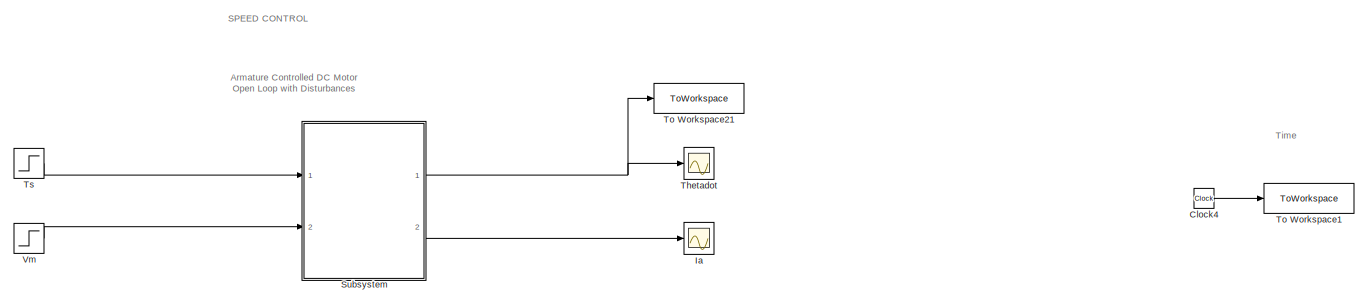
[diagram: root canvas - part 1/6, top left region]
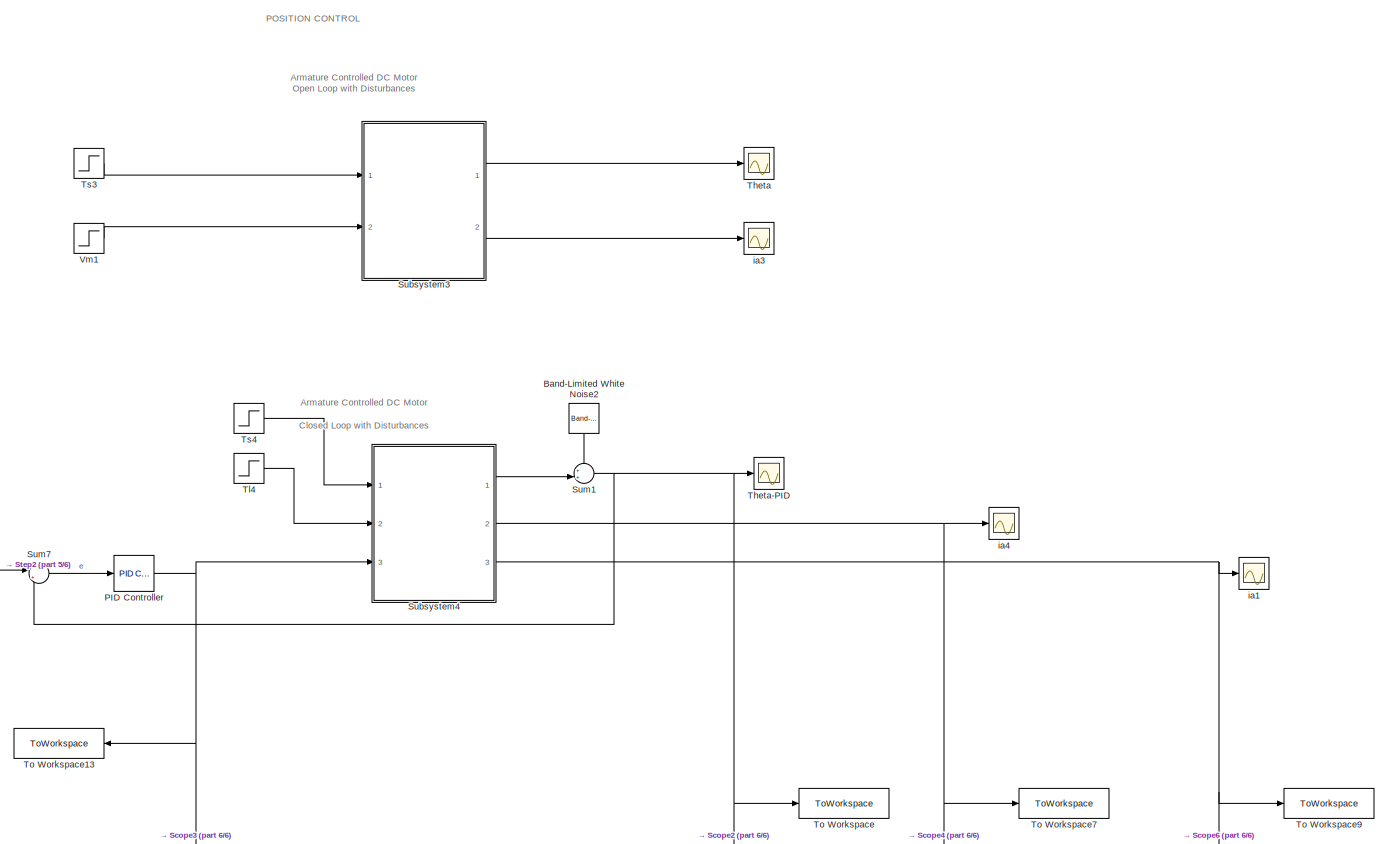
[diagram: root canvas - part 2/6, top right region]
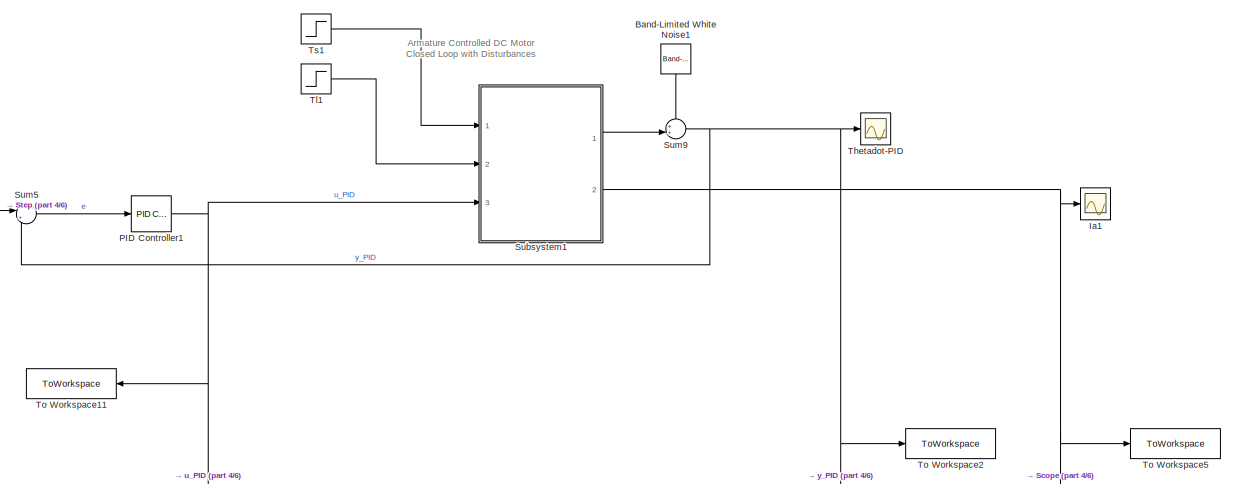
[diagram: root canvas - part 3/6, middle left region]
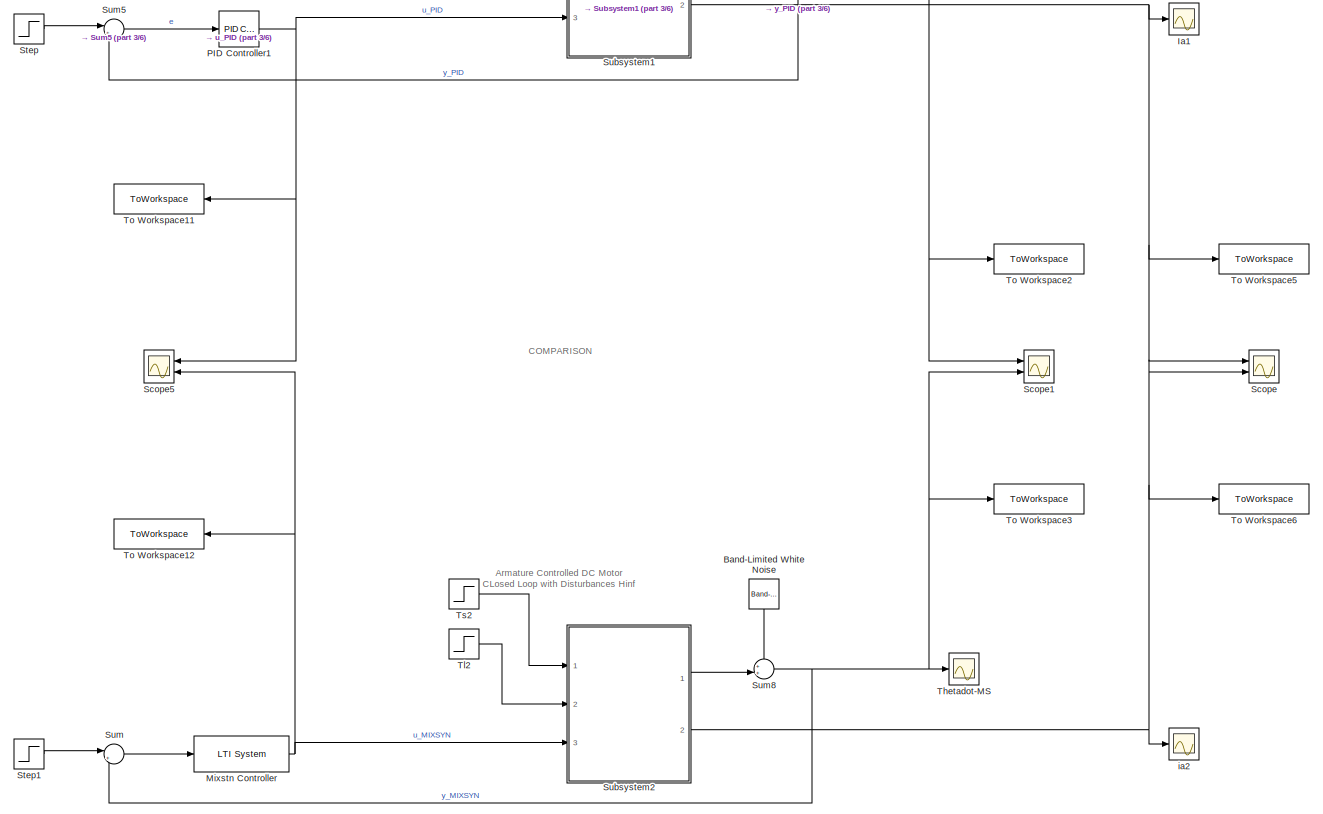
[diagram: root canvas - part 4/6, bottom left region]
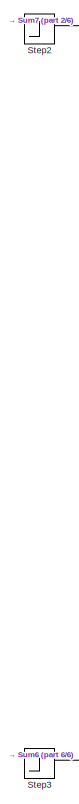
[diagram: root canvas - part 5/6, bottom center region]
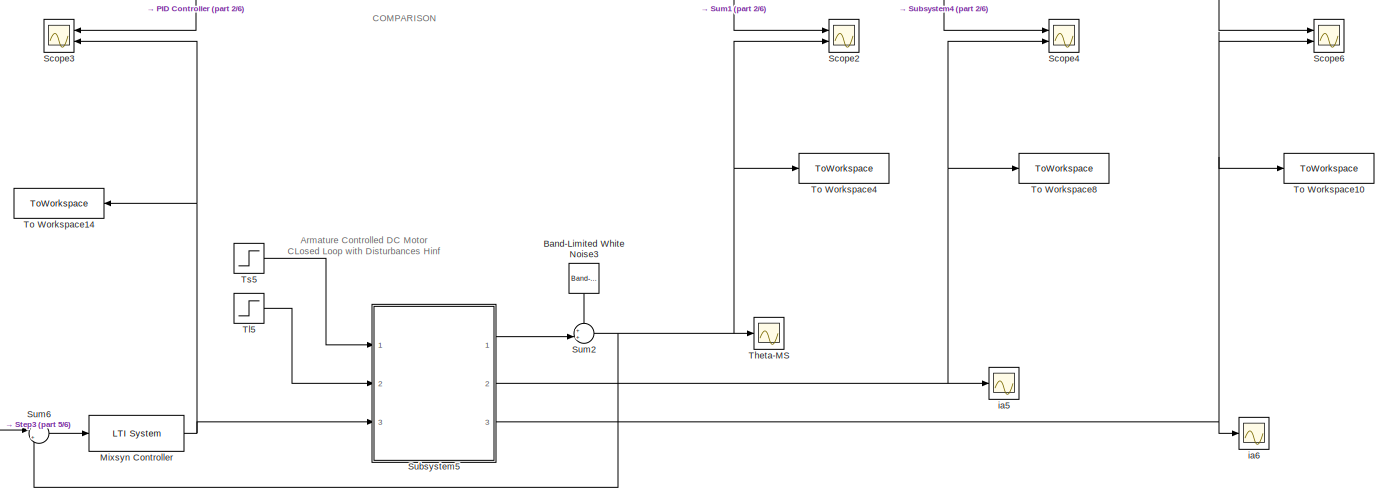
[diagram: root canvas - part 6/6, bottom right region]
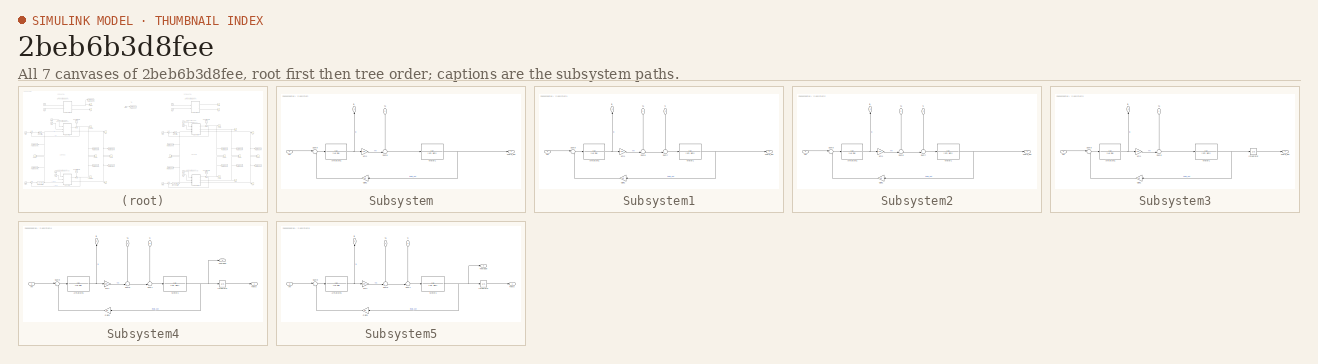
[diagram: thumbnail index - all 7 canvases of the model, root first then tree order]
MODEL slx_2beb6b3d8fee
KIND model
CONFIG AbsTol = auto
CONFIG EnableMultiTasking = off
CONFIG FixedStep = auto
CONFIG MaxStep = auto
CONFIG MinStep = auto
CONFIG RelTol = 1e-3
CONFIG SampleTimeConstraint = Unconstrained
CONFIG SolverName = VariableStepAuto
CONFIG StartTime = 0.0
CONFIG StopTime = 1
BLOCK [Reference] Band-Limited White Noise  REF=simulink/Sources/Band-Limited
White Noise
  NameLocation = left
  Ports = [0, 1]
  SourceBlock = simulink/Sources/Band-Limited\nWhite Noise
  SourceProductBaseCode = SL
  SourceType = Band-Limited White Noise.
BLOCK [Reference] Band-Limited White Noise1  REF=simulink/Sources/Band-Limited
White Noise
  NameLocation = left
  Ports = [0, 1]
  SourceBlock = simulink/Sources/Band-Limited\nWhite Noise
  SourceProductBaseCode = SL
  SourceType = Band-Limited White Noise.
BLOCK [Reference] Band-Limited White Noise2  REF=simulink/Sources/Band-Limited
White Noise
  NameLocation = left
  Ports = [0, 1]
  SourceBlock = simulink/Sources/Band-Limited\nWhite Noise
  SourceProductBaseCode = SL
  SourceType = Band-Limited White Noise.
BLOCK [Reference] Band-Limited White Noise3  REF=simulink/Sources/Band-Limited
White Noise
  NameLocation = left
  Ports = [0, 1]
  SourceBlock = simulink/Sources/Band-Limited\nWhite Noise
  SourceProductBaseCode = SL
  SourceType = Band-Limited White Noise.
BLOCK [Clock] Clock4
BLOCK [Scope] Ia
  Floating = off
  NumInputPorts = 1
  Ports = [1]
  ScopeSpecificationString = Simulink.scopes.TimeScopeBlockCfg('CurrentConfiguration', extmgr.ConfigurationSet(extmgr.Configuration('Core','General UI',true),extmgr.Configuration('Core','Source UI',true),extmgr.Configuration('Sources','WiredSimulink',true,'DataLoggingVariableName','ScopeData3'),extmgr.Configuration('Visuals','Time Domain',true,'SerializedDisplays',{struct('MinYLimReal','-0.0852','MaxYLimReal','0.76677','YLabe...<+1369ch>
BLOCK [Scope] Ia1
  Floating = off
  NumInputPorts = 1
  Ports = [1]
  ScopeSpecificationString = Simulink.scopes.TimeScopeBlockCfg('CurrentConfiguration', extmgr.ConfigurationSet(extmgr.Configuration('Core','General UI',true),extmgr.Configuration('Core','Source UI',true),extmgr.Configuration('Sources','WiredSimulink',true,'DataLoggingVariableName','ScopeData5'),extmgr.Configuration('Visuals','Time Domain',true,'SerializedDisplays',{struct('MinYLimReal','-0.08845','MaxYLimReal','0.79606','YLab...<+1372ch>
BLOCK [Reference] Mixstn Controller  REF=cstblocks/LTI System
  Ports = [1, 1]
  SourceBlock = cstblocks/LTI System
  SourceProductBaseCode = CT
  SourceType = LTI Block
BLOCK [Reference] Mixsyn Controller  REF=cstblocks/LTI System
  Ports = [1, 1]
  SourceBlock = cstblocks/LTI System
  SourceProductBaseCode = CT
  SourceType = LTI Block
BLOCK [Reference] PID Controller  REF=pid_lib/PID Controller
  Ports = [1, 1]
  SourceBlock = pid_lib/PID Controller
  SourceProductBaseCode = SL
  SourceType = PID 1dof
BLOCK [Reference] PID Controller1  REF=pid_lib/PID Controller
  Ports = [1, 1]
  SourceBlock = pid_lib/PID Controller
  SourceProductBaseCode = SL
  SourceType = PID 1dof
BLOCK [Scope] Scope
  Floating = off
  NumInputPorts = 2
  Ports = [2]
  ScopeSpecificationString = Simulink.scopes.TimeScopeBlockCfg('CurrentConfiguration', extmgr.ConfigurationSet(extmgr.Configuration('Core','General UI',true),extmgr.Configuration('Core','Source UI',true),extmgr.Configuration('Sources','WiredSimulink',true,'DataLoggingVariableName','ScopeData1'),extmgr.Configuration('Visuals','Time Domain',true,'SerializedDisplays',{struct('MinYLimReal','0.36527','MaxYLimReal','0.37391','YLabe...<+1465ch>
BLOCK [Scope] Scope1
  Floating = off
  NumInputPorts = 2
  Ports = [2]
  ScopeSpecificationString = Simulink.scopes.TimeScopeBlockCfg('CurrentConfiguration', extmgr.ConfigurationSet(extmgr.Configuration('Core','General UI',true,'FigureColor',[1 1 1]),extmgr.Configuration('Core','Source UI',true),extmgr.Configuration('Sources','WiredSimulink',true,'DataLoggingVariableName','ScopeData3'),extmgr.Configuration('Visuals','Time Domain',true,'SerializedDisplays',{struct('MinYLimReal','-3373.1511','MaxY...<+1807ch>
BLOCK [Scope] Scope2
  Floating = off
  NumInputPorts = 2
  Ports = [2]
  ScopeSpecificationString = Simulink.scopes.TimeScopeBlockCfg('CurrentConfiguration', extmgr.ConfigurationSet(extmgr.Configuration('Core','General UI',true,'FigureColor',[1 1 1]),extmgr.Configuration('Core','Source UI',true),extmgr.Configuration('Sources','WiredSimulink',true,'DataLoggingVariableName','ScopeData4'),extmgr.Configuration('Visuals','Time Domain',true,'SerializedDisplays',{struct('MinYLimReal','-40.50804','MaxYL...<+1769ch>
BLOCK [Scope] Scope3
  Floating = off
  NameLocation = top
  NumInputPorts = 2
  Ports = [2]
  ScopeSpecificationString = Simulink.scopes.TimeScopeBlockCfg('CurrentConfiguration', extmgr.ConfigurationSet(extmgr.Configuration('Core','General UI',true,'FigureColor',[1 1 1]),extmgr.Configuration('Core','Source UI',true),extmgr.Configuration('Sources','WiredSimulink',true,'DataLoggingVariableName','ScopeData11'),extmgr.Configuration('Visuals','Time Domain',true,'SerializedDisplays',{struct('MinYLimReal','-19.03007','MaxY...<+1790ch>
BLOCK [Scope] Scope4
  Floating = off
  NumInputPorts = 2
  Ports = [2]
  ScopeSpecificationString = Simulink.scopes.TimeScopeBlockCfg('CurrentConfiguration', extmgr.ConfigurationSet(extmgr.Configuration('Core','General UI',true),extmgr.Configuration('Core','Source UI',true),extmgr.Configuration('Sources','WiredSimulink',true,'DataLoggingVariableName','ScopeData2'),extmgr.Configuration('Visuals','Time Domain',true,'SerializedDisplays',{struct('MinYLimReal','-2.2725','MaxYLimReal','5.62949','YLabe...<+1463ch>
BLOCK [Scope] Scope5
  Floating = off
  NameLocation = top
  NumInputPorts = 2
  Ports = [2]
  ScopeSpecificationString = Simulink.scopes.TimeScopeBlockCfg('CurrentConfiguration', extmgr.ConfigurationSet(extmgr.Configuration('Core','General UI',true,'FigureColor',[1 1 1]),extmgr.Configuration('Core','Source UI',true),extmgr.Configuration('Sources','WiredSimulink',true,'DataLoggingVariableName','ScopeData13'),extmgr.Configuration('Visuals','Time Domain',true,'SerializedDisplays',{struct('MinYLimReal','-1.22752','MaxYL...<+1767ch>
BLOCK [Scope] Scope6
  Floating = off
  NumInputPorts = 2
  Ports = [2]
  ScopeSpecificationString = Simulink.scopes.TimeScopeBlockCfg('CurrentConfiguration', extmgr.ConfigurationSet(extmgr.Configuration('Core','General UI',true),extmgr.Configuration('Core','Source UI',true),extmgr.Configuration('Sources','WiredSimulink',true,'DataLoggingVariableName','ScopeData3'),extmgr.Configuration('Visuals','Time Domain',true,'SerializedDisplays',{struct('MinYLimReal','-10358.99108','MaxYLimReal','23886.1635...<+1476ch>
BLOCK [Step] Step
  After = 25000
  SampleTime = 0
  Time = 0
BLOCK [Step] Step1
  After = 25000
  SampleTime = 0
  Time = 0
BLOCK [Step] Step2
  After = 210
  SampleTime = 0
  Time = 0
BLOCK [Step] Step3
  After = 210
  SampleTime = 0
  Time = 0
BLOCK [SubSystem] Subsystem
  Ports = [2, 2]
  RequestExecContextInheritance = off
BLOCK [TransferFcn] Subsystem/Armature1
  Denominator = [La Ra]
BLOCK [Gain] Subsystem/Gain1
  Gain = ke
  NameLocation = top
BLOCK [TransferFcn] Subsystem/Motor1
  Denominator = [Jm Bm]
BLOCK [Sum] Subsystem/Sum6
  Inputs = -+|
  Ports = [2, 1]
BLOCK [Sum] Subsystem/Sum9
  Inputs = |+-
  Ports = [2, 1]
BLOCK [Outport] Subsystem/Theta_dot
BLOCK [Inport] Subsystem/Ts
  NameLocation = left
BLOCK [Inport] Subsystem/Vm
  Port = 2
BLOCK [Outport] Subsystem/ia
  NameLocation = right
  Port = 2
BLOCK [Gain] Subsystem/km1
  Gain = km
BLOCK [SubSystem] Subsystem1
  Ports = [3, 2]
  RequestExecContextInheritance = off
BLOCK [TransferFcn] Subsystem1/Armature1
  Denominator = [La Ra]
BLOCK [Gain] Subsystem1/Gain1
  Gain = ke
  NameLocation = top
BLOCK [TransferFcn] Subsystem1/Motor1
  Denominator = [Jm Bm]
BLOCK [Sum] Subsystem1/Sum6
  Inputs = -+|
  Ports = [2, 1]
BLOCK [Sum] Subsystem1/Sum7
  Inputs = -+|
  Ports = [2, 1]
BLOCK [Sum] Subsystem1/Sum9
  Inputs = |+-
  Ports = [2, 1]
BLOCK [Outport] Subsystem1/Theta_dot
BLOCK [Inport] Subsystem1/Tl
  NameLocation = left
  Port = 2
BLOCK [Inport] Subsystem1/Ts
  NameLocation = left
BLOCK [Inport] Subsystem1/Vm
  Port = 3
BLOCK [Outport] Subsystem1/ia
  NameLocation = right
  Port = 2
BLOCK [Gain] Subsystem1/km1
  Gain = km
BLOCK [SubSystem] Subsystem2
  Ports = [3, 2]
  RequestExecContextInheritance = off
BLOCK [TransferFcn] Subsystem2/Armature1
  Denominator = [La Ra]
BLOCK [Gain] Subsystem2/Gain1
  Gain = ke
  NameLocation = top
BLOCK [TransferFcn] Subsystem2/Motor1
  Denominator = [Jm Bm]
BLOCK [Sum] Subsystem2/Sum6
  Inputs = -+|
  Ports = [2, 1]
BLOCK [Sum] Subsystem2/Sum7
  Inputs = -+|
  Ports = [2, 1]
BLOCK [Sum] Subsystem2/Sum9
  Inputs = |+-
  Ports = [2, 1]
BLOCK [Outport] Subsystem2/Theta_dot
BLOCK [Inport] Subsystem2/Tl
  NameLocation = left
  Port = 2
BLOCK [Inport] Subsystem2/Ts
  NameLocation = left
BLOCK [Inport] Subsystem2/Vm
  Port = 3
BLOCK [Outport] Subsystem2/ia
  NameLocation = right
  Port = 2
BLOCK [Gain] Subsystem2/km1
  Gain = km
BLOCK [SubSystem] Subsystem3
  Ports = [2, 2]
  RequestExecContextInheritance = off
BLOCK [TransferFcn] Subsystem3/Armature1
  Denominator = [La Ra]
BLOCK [Gain] Subsystem3/Gain1
  Gain = ke
  NameLocation = top
BLOCK [Integrator] Subsystem3/Integrator
  Ports = [1, 1]
BLOCK [TransferFcn] Subsystem3/Motor1
  Denominator = [Jm Bm]
BLOCK [Sum] Subsystem3/Sum6
  Inputs = -+|
  Ports = [2, 1]
BLOCK [Sum] Subsystem3/Sum9
  Inputs = |+-
  Ports = [2, 1]
BLOCK [Outport] Subsystem3/Theta_dot
BLOCK [Inport] Subsystem3/Ts
  NameLocation = left
BLOCK [Inport] Subsystem3/Vm
  Port = 2
BLOCK [Outport] Subsystem3/ia
  NameLocation = right
  Port = 2
BLOCK [Gain] Subsystem3/km1
  Gain = km
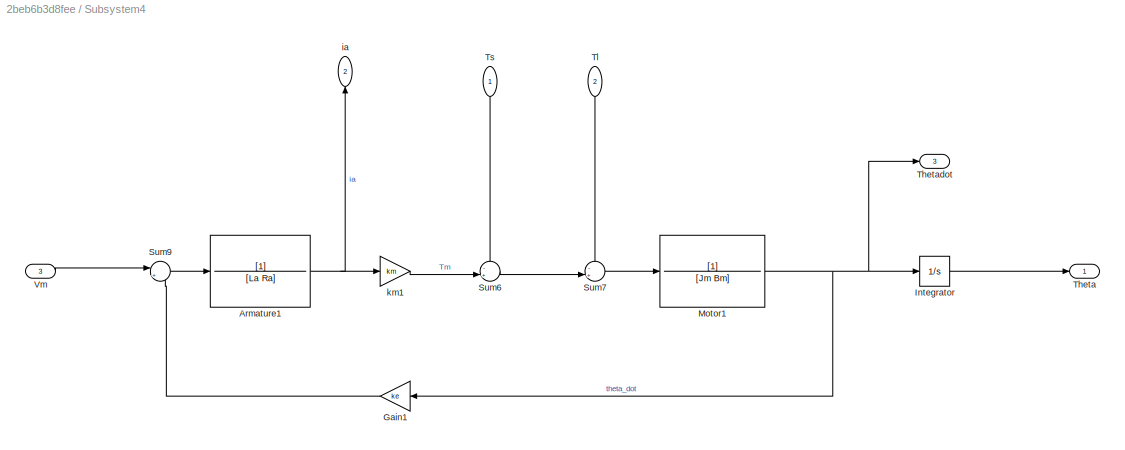
BLOCK [SubSystem] Subsystem4
  Ports = [3, 3]
  RequestExecContextInheritance = off
BLOCK [TransferFcn] Subsystem4/Armature1
  Denominator = [La Ra]
BLOCK [Gain] Subsystem4/Gain1
  Gain = ke
  NameLocation = top
BLOCK [Integrator] Subsystem4/Integrator
  Ports = [1, 1]
BLOCK [TransferFcn] Subsystem4/Motor1
  Denominator = [Jm Bm]
BLOCK [Sum] Subsystem4/Sum6
  Inputs = -+|
  Ports = [2, 1]
BLOCK [Sum] Subsystem4/Sum7
  Inputs = -+|
  Ports = [2, 1]
BLOCK [Sum] Subsystem4/Sum9
  Inputs = |+-
  Ports = [2, 1]
BLOCK [Outport] Subsystem4/Theta
BLOCK [Outport] Subsystem4/Thetadot
  Port = 3
BLOCK [Inport] Subsystem4/Tl
  NameLocation = left
  Port = 2
BLOCK [Inport] Subsystem4/Ts
  NameLocation = left
BLOCK [Inport] Subsystem4/Vm
  Port = 3
BLOCK [Outport] Subsystem4/ia
  NameLocation = right
  Port = 2
BLOCK [Gain] Subsystem4/km1
  Gain = km
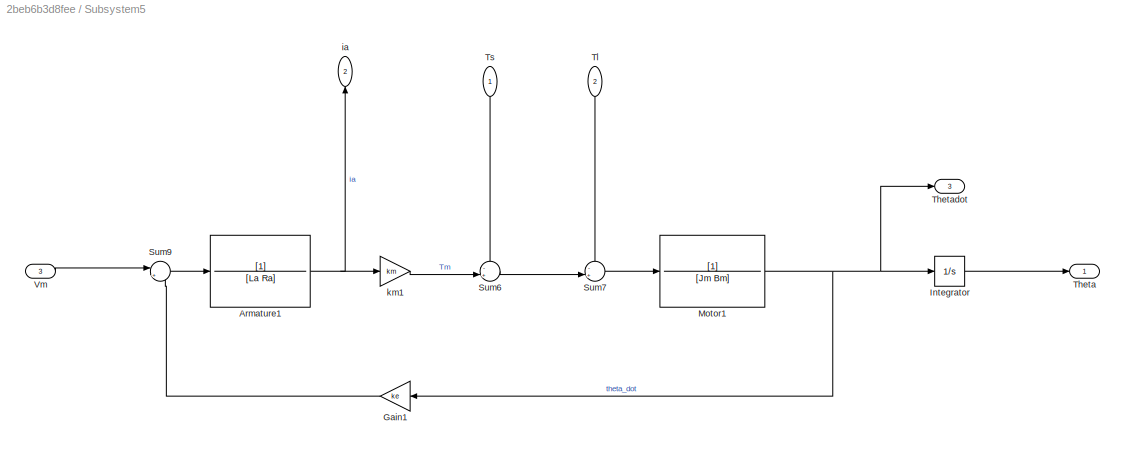
BLOCK [SubSystem] Subsystem5
  Ports = [3, 3]
  RequestExecContextInheritance = off
BLOCK [TransferFcn] Subsystem5/Armature1
  Denominator = [La Ra]
BLOCK [Gain] Subsystem5/Gain1
  Gain = ke
  NameLocation = top
BLOCK [Integrator] Subsystem5/Integrator
  Ports = [1, 1]
BLOCK [TransferFcn] Subsystem5/Motor1
  Denominator = [Jm Bm]
BLOCK [Sum] Subsystem5/Sum6
  Inputs = -+|
  Ports = [2, 1]
BLOCK [Sum] Subsystem5/Sum7
  Inputs = -+|
  Ports = [2, 1]
BLOCK [Sum] Subsystem5/Sum9
  Inputs = |+-
  Ports = [2, 1]
BLOCK [Outport] Subsystem5/Theta
BLOCK [Outport] Subsystem5/Thetadot
  Port = 3
BLOCK [Inport] Subsystem5/Tl
  NameLocation = left
  Port = 2
BLOCK [Inport] Subsystem5/Ts
  NameLocation = left
BLOCK [Inport] Subsystem5/Vm
  Port = 3
BLOCK [Outport] Subsystem5/ia
  NameLocation = right
  Port = 2
BLOCK [Gain] Subsystem5/km1
  Gain = km
BLOCK [Sum] Sum
  Inputs = |+-
  Ports = [2, 1]
BLOCK [Sum] Sum1
  Inputs = ++|
  Ports = [2, 1]
BLOCK [Sum] Sum2
  Inputs = ++|
  Ports = [2, 1]
BLOCK [Sum] Sum5
  Inputs = |+-
  Ports = [2, 1]
BLOCK [Sum] Sum6
  Inputs = |+-
  Ports = [2, 1]
BLOCK [Sum] Sum7
  Inputs = |+-
  Ports = [2, 1]
BLOCK [Sum] Sum8
  Inputs = ++|
  Ports = [2, 1]
BLOCK [Sum] Sum9
  Inputs = ++|
  Ports = [2, 1]
BLOCK [Scope] Theta
  Floating = off
  NumInputPorts = 1
  Ports = [1]
  ScopeSpecificationString = Simulink.scopes.TimeScopeBlockCfg('CurrentConfiguration', extmgr.ConfigurationSet(extmgr.Configuration('Core','General UI',true),extmgr.Configuration('Core','Source UI',true),extmgr.Configuration('Sources','WiredSimulink',true,'DataLoggingVariableName','ScopeData5'),extmgr.Configuration('Visuals','Time Domain',true,'SerializedDisplays',{struct('MinYLimReal','-11710.53107','MaxYLimReal','105394.779...<+1482ch>
BLOCK [Scope] Theta-MS
  Floating = off
  NumInputPorts = 1
  Ports = [1]
  ScopeSpecificationString = Simulink.scopes.TimeScopeBlockCfg('CurrentConfiguration', extmgr.ConfigurationSet(extmgr.Configuration('Core','General UI',true),extmgr.Configuration('Core','Source UI',true),extmgr.Configuration('Sources','WiredSimulink',true,'DataLoggingVariableName','ScopeData7'),extmgr.Configuration('Visuals','Time Domain',true,'SerializedDisplays',{struct('MinYLimReal','-28.58001','MaxYLimReal','236.80388','Y...<+1448ch>
BLOCK [Scope] Theta-PID
  Floating = off
  NumInputPorts = 1
  Ports = [1]
  ScopeSpecificationString = Simulink.scopes.TimeScopeBlockCfg('CurrentConfiguration', extmgr.ConfigurationSet(extmgr.Configuration('Core','General UI',true),extmgr.Configuration('Core','Source UI',true),extmgr.Configuration('Sources','WiredSimulink',true,'DataLoggingVariableName','ScopeData6'),extmgr.Configuration('Visuals','Time Domain',true,'SerializedDisplays',{struct('MinYLimReal','-31.16757','MaxYLimReal','280.86462','Y...<+1450ch>
BLOCK [Scope] Thetadot
  Floating = off
  NumInputPorts = 1
  Ports = [1]
  ScopeSpecificationString = Simulink.scopes.TimeScopeBlockCfg('CurrentConfiguration', extmgr.ConfigurationSet(extmgr.Configuration('Core','General UI',true,'FigureColor',[1 1 1]),extmgr.Configuration('Core','Source UI',true),extmgr.Configuration('Sources','WiredSimulink',true,'DataLoggingVariableName','ScopeData2'),extmgr.Configuration('Visuals','Time Domain',true,'SerializedDisplays',{struct('MinYLimReal','-6044.91309','Max...<+1776ch>
BLOCK [Scope] Thetadot-MS
  Floating = off
  NumInputPorts = 1
  Ports = [1]
  ScopeSpecificationString = Simulink.scopes.TimeScopeBlockCfg('CurrentConfiguration', extmgr.ConfigurationSet(extmgr.Configuration('Core','General UI',true),extmgr.Configuration('Core','Source UI',true),extmgr.Configuration('Sources','WiredSimulink',true,'DataLoggingVariableName','ScopeData1'),extmgr.Configuration('Visuals','Time Domain',true,'SerializedDisplays',{struct('MinYLimReal','-559.29695','MaxYLimReal','859.47055','...<+1451ch>
BLOCK [Scope] Thetadot-PID
  Floating = off
  NumInputPorts = 1
  Ports = [1]
  ScopeSpecificationString = Simulink.scopes.TimeScopeBlockCfg('CurrentConfiguration', extmgr.ConfigurationSet(extmgr.Configuration('Core','General UI',true),extmgr.Configuration('Core','Source UI',true),extmgr.Configuration('Sources','WiredSimulink',true,'DataLoggingVariableName','ScopeData4'),extmgr.Configuration('Visuals','Time Domain',true,'SerializedDisplays',{struct('MinYLimReal','-4744.23774','MaxYLimReal','29579.58049...<+1464ch>
BLOCK [Step] Tl1
  After = Tl
  SampleTime = 0
  Time = 0.5
BLOCK [Step] Tl2
  After = Tl
  SampleTime = 0
  Time = 0.5
BLOCK [Step] Tl4
  After = Tl
  SampleTime = 0
  Time = 0.5
BLOCK [Step] Tl5
  After = Tl
  SampleTime = 0
  Time = 0.5
BLOCK [ToWorkspace] To Workspace
  FixptAsFi = on
  MaxDataPoints = inf
  Ports = [1]
  SampleTime = -1
  VariableName = Theta_PID2
BLOCK [ToWorkspace] To Workspace1
  FixptAsFi = on
  MaxDataPoints = inf
  Ports = [1]
  SampleTime = -1
  VariableName = T
BLOCK [ToWorkspace] To Workspace10
  FixptAsFi = on
  MaxDataPoints = inf
  Ports = [1]
  SampleTime = -1
  VariableName = Thetadot_MS2
BLOCK [ToWorkspace] To Workspace11
  FixptAsFi = on
  MaxDataPoints = inf
  NameLocation = top
  Ports = [1]
  SampleTime = -1
  VariableName = u_PID1
BLOCK [ToWorkspace] To Workspace12
  FixptAsFi = on
  MaxDataPoints = inf
  NameLocation = top
  Ports = [1]
  SampleTime = -1
  VariableName = u_MS1
BLOCK [ToWorkspace] To Workspace13
  FixptAsFi = on
  MaxDataPoints = inf
  NameLocation = top
  Ports = [1]
  SampleTime = -1
  VariableName = u_PID2
BLOCK [ToWorkspace] To Workspace14
  FixptAsFi = on
  MaxDataPoints = inf
  NameLocation = top
  Ports = [1]
  SampleTime = -1
  VariableName = u_MS2
BLOCK [ToWorkspace] To Workspace2
  FixptAsFi = on
  MaxDataPoints = inf
  Ports = [1]
  SampleTime = -1
  VariableName = Thetadot_PID1
BLOCK [ToWorkspace] To Workspace21
  FixptAsFi = on
  MaxDataPoints = inf
  Ports = [1]
  SampleTime = -1
  VariableName = Thetadot_OL
BLOCK [ToWorkspace] To Workspace3
  FixptAsFi = on
  MaxDataPoints = inf
  Ports = [1]
  SampleTime = -1
  VariableName = Thetadot_MS1
BLOCK [ToWorkspace] To Workspace4
  FixptAsFi = on
  MaxDataPoints = inf
  Ports = [1]
  SampleTime = -1
  VariableName = Theta_MS2
BLOCK [ToWorkspace] To Workspace5
  FixptAsFi = on
  MaxDataPoints = inf
  Ports = [1]
  SampleTime = -1
  VariableName = I_PID1
BLOCK [ToWorkspace] To Workspace6
  FixptAsFi = on
  MaxDataPoints = inf
  Ports = [1]
  SampleTime = -1
  VariableName = I_MS1
BLOCK [ToWorkspace] To Workspace7
  FixptAsFi = on
  MaxDataPoints = inf
  Ports = [1]
  SampleTime = -1
  VariableName = I_PID2
BLOCK [ToWorkspace] To Workspace8
  FixptAsFi = on
  MaxDataPoints = inf
  Ports = [1]
  SampleTime = -1
  VariableName = I_MS2
BLOCK [ToWorkspace] To Workspace9
  FixptAsFi = on
  MaxDataPoints = inf
  Ports = [1]
  SampleTime = -1
  VariableName = Thetadot_PID2
BLOCK [Step] Ts
  After = Ts
  SampleTime = 0
  Time = 0
BLOCK [Step] Ts1
  After = Ts
  SampleTime = 0
  Time = 0
BLOCK [Step] Ts2
  After = Ts
  SampleTime = 0
  Time = 0
BLOCK [Step] Ts3
  After = Ts
  SampleTime = 0
  Time = 0
BLOCK [Step] Ts4
  After = Ts
  SampleTime = 0
  Time = 0
BLOCK [Step] Ts5
  After = Ts
  SampleTime = 0
  Time = 0
BLOCK [Step] Vm
  After = 6
  SampleTime = 0
  Time = 0
BLOCK [Step] Vm1
  After = 6
  SampleTime = 0
  Time = 0
BLOCK [Scope] ia1
  Floating = off
  NumInputPorts = 1
  Ports = [1]
  ScopeSpecificationString = Simulink.scopes.TimeScopeBlockCfg('CurrentConfiguration', extmgr.ConfigurationSet(extmgr.Configuration('Core','General UI',true),extmgr.Configuration('Core','Source UI',true),extmgr.Configuration('Sources','WiredSimulink',true,'DataLoggingVariableName','ScopeData4'),extmgr.Configuration('Visuals','Time Domain',true,'SerializedDisplays',{struct('MinYLimReal','-0.15127','MaxYLimReal','1.35825','YLab...<+1372ch>
BLOCK [Scope] ia2
  Floating = off
  NumInputPorts = 1
  Ports = [1]
  ScopeSpecificationString = Simulink.scopes.TimeScopeBlockCfg('CurrentConfiguration', extmgr.ConfigurationSet(extmgr.Configuration('Core','General UI',true),extmgr.Configuration('Core','Source UI',true),extmgr.Configuration('Sources','WiredSimulink',true,'DataLoggingVariableName','ScopeData2'),extmgr.Configuration('Visuals','Time Domain',true,'SerializedDisplays',{struct('MinYLimReal','-0.1794','MaxYLimReal','1.61456','YLabe...<+1445ch>
BLOCK [Scope] ia3
  Floating = off
  NumInputPorts = 1
  Ports = [1]
  ScopeSpecificationString = Simulink.scopes.TimeScopeBlockCfg('CurrentConfiguration', extmgr.ConfigurationSet(extmgr.Configuration('Core','General UI',true),extmgr.Configuration('Core','Source UI',true),extmgr.Configuration('Sources','WiredSimulink',true,'DataLoggingVariableName','ScopeData8'),extmgr.Configuration('Visuals','Time Domain',true,'SerializedDisplays',{struct('MinYLimReal','-0.03418','MaxYLimReal','0.30762','YLab...<+1371ch>
BLOCK [Scope] ia4
  Floating = off
  NumInputPorts = 1
  Ports = [1]
  ScopeSpecificationString = Simulink.scopes.TimeScopeBlockCfg('CurrentConfiguration', extmgr.ConfigurationSet(extmgr.Configuration('Core','General UI',true),extmgr.Configuration('Core','Source UI',true),extmgr.Configuration('Sources','WiredSimulink',true,'DataLoggingVariableName','ScopeData9'),extmgr.Configuration('Visuals','Time Domain',true,'SerializedDisplays',{struct('MinYLimReal','-0.15126','MaxYLimReal','1.35818','YLab...<+1372ch>
BLOCK [Scope] ia5
  Floating = off
  NumInputPorts = 1
  Ports = [1]
  ScopeSpecificationString = Simulink.scopes.TimeScopeBlockCfg('CurrentConfiguration', extmgr.ConfigurationSet(extmgr.Configuration('Core','General UI',true),extmgr.Configuration('Core','Source UI',true),extmgr.Configuration('Sources','WiredSimulink',true,'DataLoggingVariableName','ScopeData10'),extmgr.Configuration('Visuals','Time Domain',true,'SerializedDisplays',{struct('MinYLimReal','-0.24632','MaxYLimReal','1.32771','YLa...<+1392ch>
BLOCK [Scope] ia6
  Floating = off
  NumInputPorts = 1
  Ports = [1]
  ScopeSpecificationString = Simulink.scopes.TimeScopeBlockCfg('CurrentConfiguration', extmgr.ConfigurationSet(extmgr.Configuration('Core','General UI',true),extmgr.Configuration('Core','Source UI',true),extmgr.Configuration('Sources','WiredSimulink',true,'DataLoggingVariableName','ScopeData5'),extmgr.Configuration('Visuals','Time Domain',true,'SerializedDisplays',{struct('MinYLimReal','-0.24632','MaxYLimReal','1.32771','YLab...<+1391ch>
ANNOTATION (root): COMPARISON
ANNOTATION (root): Time
ANNOTATION (root): POSITION CONTROL
ANNOTATION (root): SPEED CONTROL
ANNOTATION (root): Armature Controlled DC Motor CLosed Loop with Disturbances Hinf
ANNOTATION (root): Armature Controlled DC Motor Closed Loop with Disturbances
ANNOTATION (root): Armature Controlled DC Motor Open Loop with Disturbances
LINE Band-Limited White Noise1:1 -> Sum9:1
LINE Band-Limited White Noise2:1 -> Sum1:1
LINE Band-Limited White Noise3:1 -> Sum2:1
LINE Band-Limited White Noise:1 -> Sum8:1
LINE Clock4:1 -> To Workspace1:1
NET Mixstn Controller:1 -> Scope5:2, Subsystem2:3, To Workspace12:1
NET Mixsyn Controller:1 -> Scope3:2, Subsystem5:3, To Workspace14:1
NET PID Controller1:1 -> Scope5:1, Subsystem1:3, To Workspace11:1
NET PID Controller:1 -> Scope3:1, Subsystem4:3, To Workspace13:1
LINE Step1:1 -> Sum:1
LINE Step2:1 -> Sum7:1
LINE Step3:1 -> Sum6:1
LINE Step:1 -> Sum5:1
NET Subsystem/Armature1:1 -> Subsystem/ia:1, Subsystem/km1:1
LINE Subsystem/Gain1:1 -> Subsystem/Sum9:2
NET Subsystem/Motor1:1 -> Subsystem/Gain1:1, Subsystem/Theta_dot:1
LINE Subsystem/Sum6:1 -> Subsystem/Motor1:1
LINE Subsystem/Sum9:1 -> Subsystem/Armature1:1
LINE Subsystem/Ts:1 -> Subsystem/Sum6:1
LINE Subsystem/Vm:1 -> Subsystem/Sum9:1
LINE Subsystem/km1:1 -> Subsystem/Sum6:2
NET Subsystem1/Armature1:1 -> Subsystem1/ia:1, Subsystem1/km1:1
LINE Subsystem1/Gain1:1 -> Subsystem1/Sum9:2
NET Subsystem1/Motor1:1 -> Subsystem1/Gain1:1, Subsystem1/Theta_dot:1
LINE Subsystem1/Sum6:1 -> Subsystem1/Sum7:2
LINE Subsystem1/Sum7:1 -> Subsystem1/Motor1:1
LINE Subsystem1/Sum9:1 -> Subsystem1/Armature1:1
LINE Subsystem1/Tl:1 -> Subsystem1/Sum7:1
LINE Subsystem1/Ts:1 -> Subsystem1/Sum6:1
LINE Subsystem1/Vm:1 -> Subsystem1/Sum9:1
LINE Subsystem1/km1:1 -> Subsystem1/Sum6:2
LINE Subsystem1:1 -> Sum9:2
NET Subsystem1:2 -> Ia1:1, Scope:1, To Workspace5:1
NET Subsystem2/Armature1:1 -> Subsystem2/ia:1, Subsystem2/km1:1
LINE Subsystem2/Gain1:1 -> Subsystem2/Sum9:2
NET Subsystem2/Motor1:1 -> Subsystem2/Gain1:1, Subsystem2/Theta_dot:1
LINE Subsystem2/Sum6:1 -> Subsystem2/Sum7:2
LINE Subsystem2/Sum7:1 -> Subsystem2/Motor1:1
LINE Subsystem2/Sum9:1 -> Subsystem2/Armature1:1
LINE Subsystem2/Tl:1 -> Subsystem2/Sum7:1
LINE Subsystem2/Ts:1 -> Subsystem2/Sum6:1
LINE Subsystem2/Vm:1 -> Subsystem2/Sum9:1
LINE Subsystem2/km1:1 -> Subsystem2/Sum6:2
LINE Subsystem2:1 -> Sum8:2
NET Subsystem2:2 -> Scope:2, To Workspace6:1, ia2:1
NET Subsystem3/Armature1:1 -> Subsystem3/ia:1, Subsystem3/km1:1
LINE Subsystem3/Gain1:1 -> Subsystem3/Sum9:2
LINE Subsystem3/Integrator:1 -> Subsystem3/Theta_dot:1
NET Subsystem3/Motor1:1 -> Subsystem3/Gain1:1, Subsystem3/Integrator:1
LINE Subsystem3/Sum6:1 -> Subsystem3/Motor1:1
LINE Subsystem3/Sum9:1 -> Subsystem3/Armature1:1
LINE Subsystem3/Ts:1 -> Subsystem3/Sum6:1
LINE Subsystem3/Vm:1 -> Subsystem3/Sum9:1
LINE Subsystem3/km1:1 -> Subsystem3/Sum6:2
LINE Subsystem3:1 -> Theta:1
LINE Subsystem3:2 -> ia3:1
NET Subsystem4/Armature1:1 -> Subsystem4/ia:1, Subsystem4/km1:1
LINE Subsystem4/Gain1:1 -> Subsystem4/Sum9:2
LINE Subsystem4/Integrator:1 -> Subsystem4/Theta:1
NET Subsystem4/Motor1:1 -> Subsystem4/Gain1:1, Subsystem4/Integrator:1, Subsystem4/Thetadot:1
LINE Subsystem4/Sum6:1 -> Subsystem4/Sum7:2
LINE Subsystem4/Sum7:1 -> Subsystem4/Motor1:1
LINE Subsystem4/Sum9:1 -> Subsystem4/Armature1:1
LINE Subsystem4/Tl:1 -> Subsystem4/Sum7:1
LINE Subsystem4/Ts:1 -> Subsystem4/Sum6:1
LINE Subsystem4/Vm:1 -> Subsystem4/Sum9:1
LINE Subsystem4/km1:1 -> Subsystem4/Sum6:2
LINE Subsystem4:1 -> Sum1:2
NET Subsystem4:2 -> Scope4:1, To Workspace7:1, ia4:1
NET Subsystem4:3 -> Scope6:1, To Workspace9:1, ia1:1
NET Subsystem5/Armature1:1 -> Subsystem5/ia:1, Subsystem5/km1:1
LINE Subsystem5/Gain1:1 -> Subsystem5/Sum9:2
LINE Subsystem5/Integrator:1 -> Subsystem5/Theta:1
NET Subsystem5/Motor1:1 -> Subsystem5/Gain1:1, Subsystem5/Integrator:1, Subsystem5/Thetadot:1
LINE Subsystem5/Sum6:1 -> Subsystem5/Sum7:2
LINE Subsystem5/Sum7:1 -> Subsystem5/Motor1:1
LINE Subsystem5/Sum9:1 -> Subsystem5/Armature1:1
LINE Subsystem5/Tl:1 -> Subsystem5/Sum7:1
LINE Subsystem5/Ts:1 -> Subsystem5/Sum6:1
LINE Subsystem5/Vm:1 -> Subsystem5/Sum9:1
LINE Subsystem5/km1:1 -> Subsystem5/Sum6:2
LINE Subsystem5:1 -> Sum2:2
NET Subsystem5:2 -> Scope4:2, To Workspace8:1, ia5:1
NET Subsystem5:3 -> Scope6:2, To Workspace10:1, ia6:1
NET Subsystem:1 -> Thetadot:1, To Workspace21:1
LINE Subsystem:2 -> Ia:1
NET Sum1:1 -> Scope2:1, Sum7:2, Theta-PID:1, To Workspace:1
NET Sum2:1 -> Scope2:2, Sum6:2, Theta-MS:1, To Workspace4:1
LINE Sum5:1 -> PID Controller1:1
LINE Sum6:1 -> Mixsyn Controller:1
LINE Sum7:1 -> PID Controller:1
NET Sum8:1 -> Scope1:2, Sum:2, Thetadot-MS:1, To Workspace3:1
NET Sum9:1 -> Scope1:1, Sum5:2, Thetadot-PID:1, To Workspace2:1
LINE Sum:1 -> Mixstn Controller:1
LINE Tl1:1 -> Subsystem1:2
LINE Tl2:1 -> Subsystem2:2
LINE Tl4:1 -> Subsystem4:2
LINE Tl5:1 -> Subsystem5:2
LINE Ts1:1 -> Subsystem1:1
LINE Ts2:1 -> Subsystem2:1
LINE Ts3:1 -> Subsystem3:1
LINE Ts4:1 -> Subsystem4:1
LINE Ts5:1 -> Subsystem5:1
LINE Ts:1 -> Subsystem:1
LINE Vm1:1 -> Subsystem3:2
LINE Vm:1 -> Subsystem:2
note: NET lines group one-source signal fan-out (src -> all destinations, sorted); 1:1 wires keep LINE
